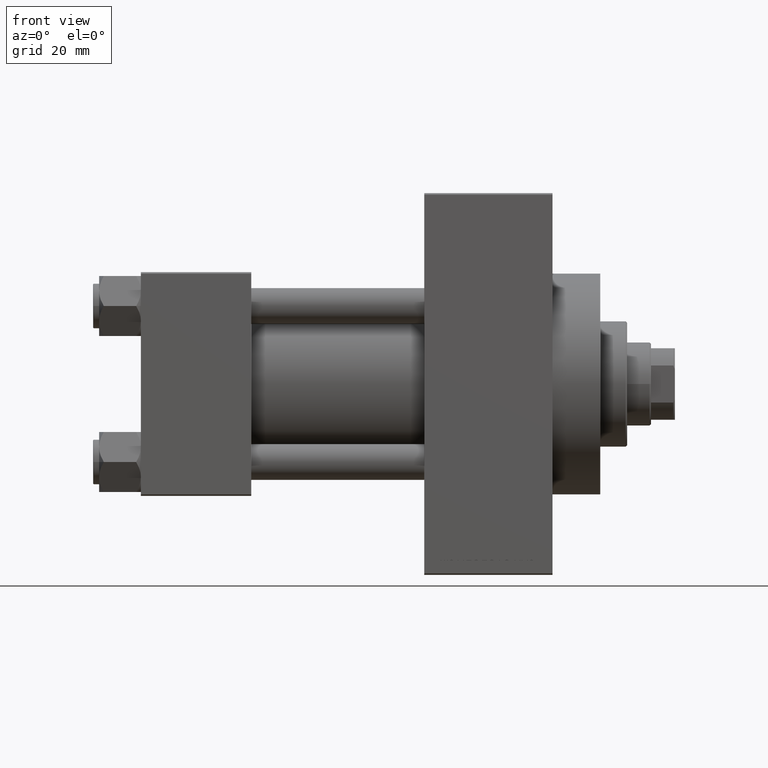
[diagram: clean part render]
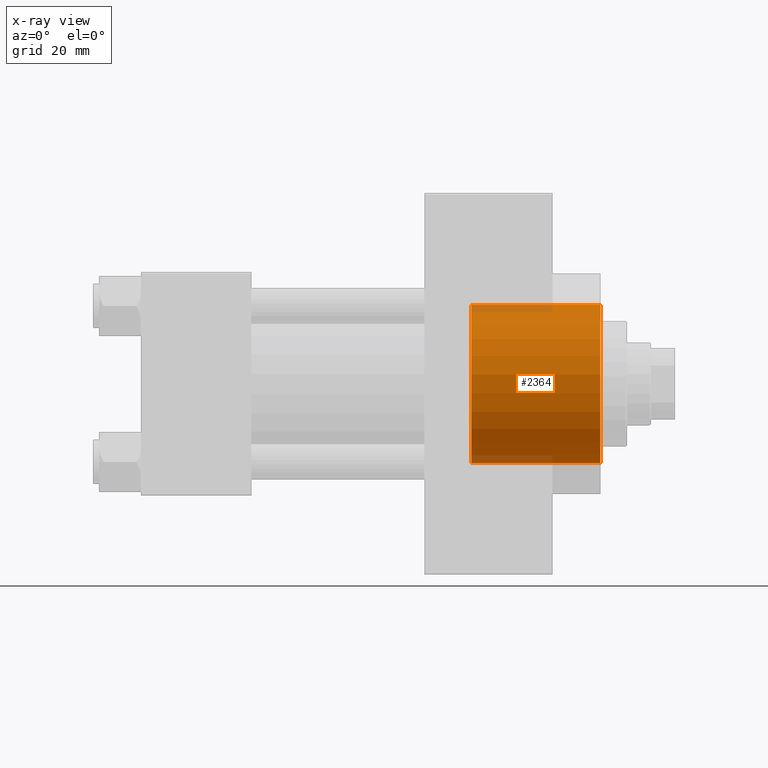
[diagram: x-ray — body ghosted, one internal face saturated and labeled with its STEP entity id]
A machine part, front view, then the same camera in x-ray: the body is ghosted and one INTERNAL B-rep face — a face not visible from any outside direction — is saturated and labeled: STEP entity #2364.
In plain terms, the highlighted cylindrical surface (partial cylindrical patch) has radius 26.5 mm, axis along (1, 0, 0).
Its self-contained STEP definition (entity closure, byte-faithful):
#956 = CARTESIAN_POINT ( 'NONE',  ( 154.0000000000000284, 0.000000000000000000, -26.50000000000000355 ) ) ;
#998 = EDGE_LOOP ( 'NONE', ( #19275, #12982, #25176, #12342 ) ) ;
#1863 = CYLINDRICAL_SURFACE ( 'NONE', #44581, 26.50000000000000355 ) ;
#2364 = ADVANCED_FACE ( 'NONE', ( #31464 ), #1863, .F. ) ;
#4661 = LINE ( 'NONE', #19468, #35615 ) ;
#5804 = VERTEX_POINT ( 'NONE', #38220 ) ;
#7322 = EDGE_CURVE ( 'NONE', #5804, #22831, #4661, .T. ) ;
#7427 = EDGE_CURVE ( 'NONE', #41998, #12205, #19935, .T. ) ;
#10335 = DIRECTION ( 'NONE',  ( 0.000000000000000000, 0.000000000000000000, -1.000000000000000000 ) ) ;
#10579 = CARTESIAN_POINT ( 'NONE',  ( 110.7400000000000375, 0.000000000000000000, 0.000000000000000000 ) ) ;
#11576 = CARTESIAN_POINT ( 'NONE',  ( 154.0000000000000284, 3.245314017740486554E-15, 26.50000000000000355 ) ) ;
#12205 = VERTEX_POINT ( 'NONE', #956 ) ;
#12342 = ORIENTED_EDGE ( 'NONE', *, *, #7427, .F. ) ;
#12982 = ORIENTED_EDGE ( 'NONE', *, *, #7322, .T. ) ;
#13463 = DIRECTION ( 'NONE',  ( 1.000000000000000000, 0.000000000000000000, 0.000000000000000000 ) ) ;
#17529 = EDGE_CURVE ( 'NONE', #22831, #12205, #19805, .T. ) ;
#19275 = ORIENTED_EDGE ( 'NONE', *, *, #34324, .F. ) ;
#19468 = CARTESIAN_POINT ( 'NONE',  ( 110.7400000000000375, 3.245314017740486554E-15, 26.50000000000000355 ) ) ;
#19805 = CIRCLE ( 'NONE', #46481, 26.50000000000000355 ) ;
#19935 = LINE ( 'NONE', #34735, #42455 ) ;
#20858 = CIRCLE ( 'NONE', #27748, 26.50000000000000355 ) ;
#21320 = CARTESIAN_POINT ( 'NONE',  ( 110.7400000000000375, 0.000000000000000000, -26.50000000000000355 ) ) ;
#22831 = VERTEX_POINT ( 'NONE', #11576 ) ;
#23289 = DIRECTION ( 'NONE',  ( 1.000000000000000000, -0.000000000000000000, -0.000000000000000000 ) ) ;
#24061 = CARTESIAN_POINT ( 'NONE',  ( 110.7400000000000375, 0.000000000000000000, 0.000000000000000000 ) ) ;
#24617 = CARTESIAN_POINT ( 'NONE',  ( 154.0000000000000284, 0.000000000000000000, 0.000000000000000000 ) ) ;
#25176 = ORIENTED_EDGE ( 'NONE', *, *, #17529, .T. ) ;
#27748 = AXIS2_PLACEMENT_3D ( 'NONE', #10579, #13463, #10335 ) ;
#31464 = FACE_OUTER_BOUND ( 'NONE', #998, .T. ) ;
#34324 = EDGE_CURVE ( 'NONE', #5804, #41998, #20858, .T. ) ;
#34735 = CARTESIAN_POINT ( 'NONE',  ( 110.7400000000000375, 0.000000000000000000, -26.50000000000000355 ) ) ;
#35278 = DIRECTION ( 'NONE',  ( 0.000000000000000000, 0.000000000000000000, -1.000000000000000000 ) ) ;
#35615 = VECTOR ( 'NONE', #23289, 1000.000000000000000 ) ;
#38220 = CARTESIAN_POINT ( 'NONE',  ( 110.7400000000000375, 3.245314017740486554E-15, 26.50000000000000355 ) ) ;
#38703 = DIRECTION ( 'NONE',  ( 0.000000000000000000, 0.000000000000000000, -1.000000000000000000 ) ) ;
#41998 = VERTEX_POINT ( 'NONE', #21320 ) ;
#42042 = DIRECTION ( 'NONE',  ( 1.000000000000000000, 0.000000000000000000, 0.000000000000000000 ) ) ;
#42455 = VECTOR ( 'NONE', #45480, 1000.000000000000000 ) ;
#44581 = AXIS2_PLACEMENT_3D ( 'NONE', #24061, #46029, #35278 ) ;
#45480 = DIRECTION ( 'NONE',  ( 1.000000000000000000, -0.000000000000000000, -0.000000000000000000 ) ) ;
#46029 = DIRECTION ( 'NONE',  ( 1.000000000000000000, -0.000000000000000000, -0.000000000000000000 ) ) ;
#46481 = AXIS2_PLACEMENT_3D ( 'NONE', #24617, #42042, #38703 ) ;